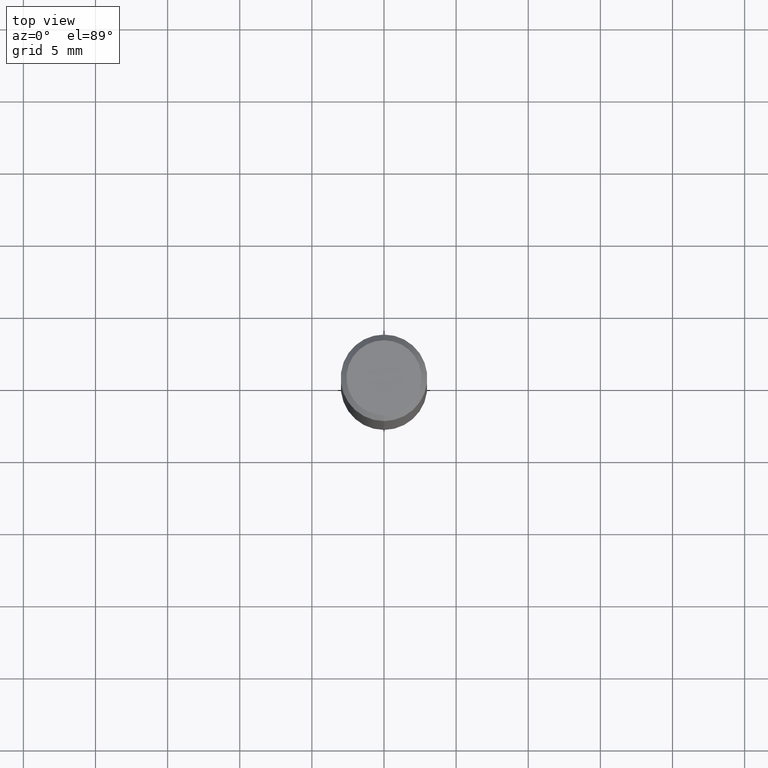
[diagram: clean part render]
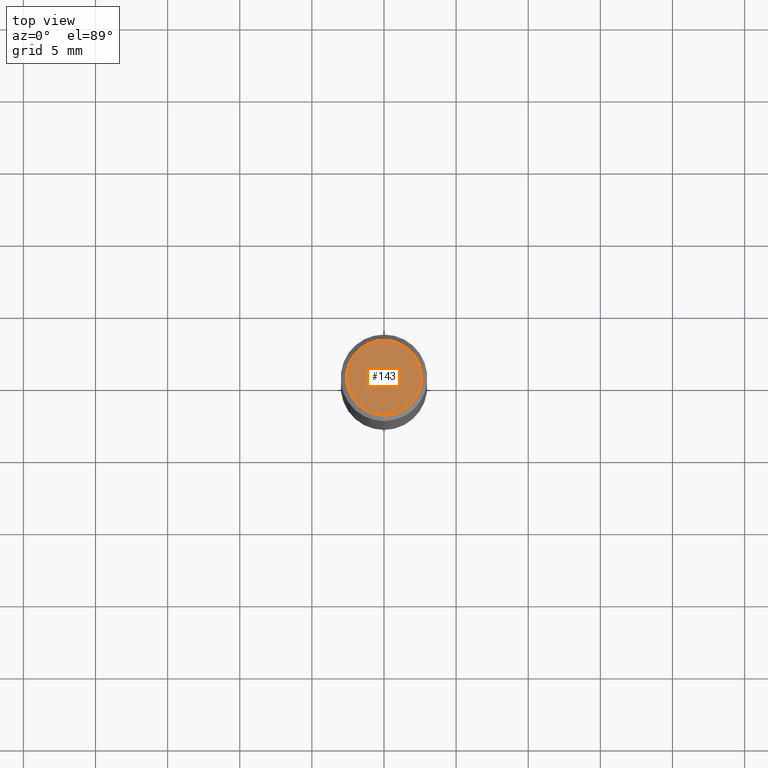
[diagram: same view with one face highlighted and labeled with its STEP entity id]
A machine part, top view. The second image highlights one B-rep face of the part: STEP entity #143.
In plain terms, the highlighted planar face has unit normal (-0, 0, 1).
Its self-contained STEP definition (entity closure, byte-faithful):
#131=VERTEX_POINT('',#335);
#143=ADVANCED_FACE('',(#347),#348,.T.);
#161=VERTEX_POINT('',#368);
#201=EDGE_CURVE('',#131,#161,#412,.T.);
#217=EDGE_CURVE('',#161,#131,#429,.T.);
#335=CARTESIAN_POINT('',(0.0,2.6,0.0));
#347=FACE_OUTER_BOUND('',#573,.T.);
#348=PLANE('',#574);
#368=CARTESIAN_POINT('',(3.18397651993818E-016,-2.6,0.0));
#412=CIRCLE('',#660,2.6);
#429=CIRCLE('',#681,2.6);
#573=EDGE_LOOP('',(#831,#832));
#574=AXIS2_PLACEMENT_3D('',#833,#834,#835);
#660=AXIS2_PLACEMENT_3D('',#917,#918,#919);
#681=AXIS2_PLACEMENT_3D('',#937,#938,#939);
#831=ORIENTED_EDGE('',*,*,#201,.F.);
#832=ORIENTED_EDGE('',*,*,#217,.F.);
#833=CARTESIAN_POINT('',(0.0,1.3,0.0));
#834=DIRECTION('',(-0.0,0.0,1.0));
#835=DIRECTION('',(0.0,-1.0,0.0));
#917=CARTESIAN_POINT('',(0.0,0.0,0.0));
#918=DIRECTION('',(0.0,0.0,-1.0));
#919=DIRECTION('',(0.0,1.0,0.0));
#937=CARTESIAN_POINT('',(0.0,0.0,0.0));
#938=DIRECTION('',(0.0,0.0,-1.0));
#939=DIRECTION('',(0.0,1.0,0.0));